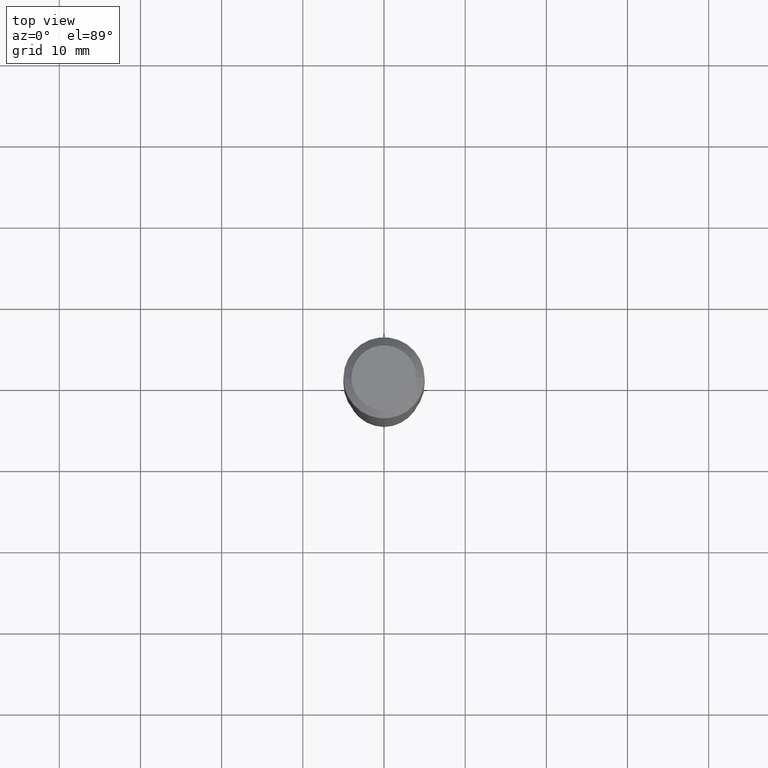
[diagram: clean part render]
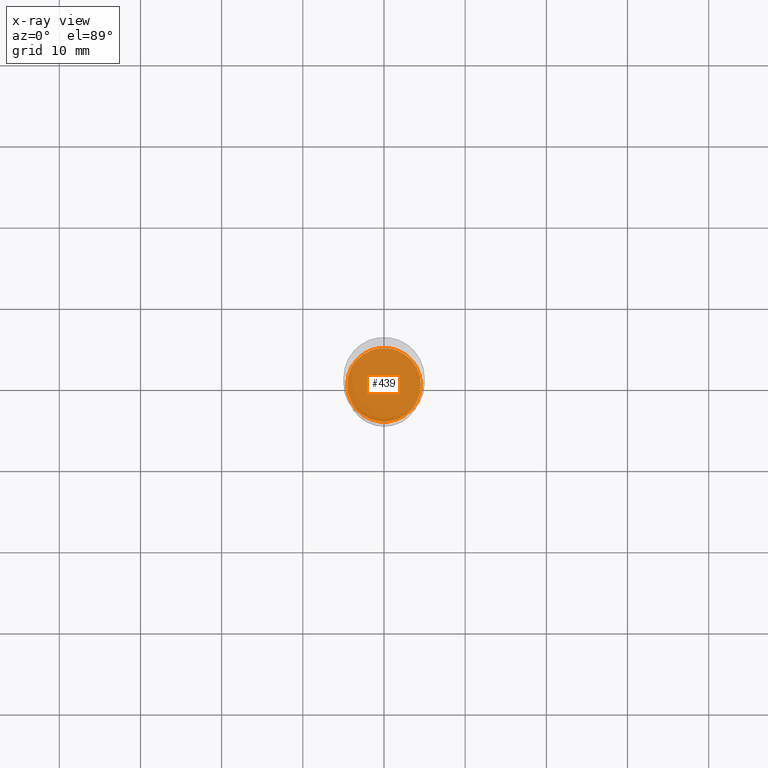
[diagram: x-ray — body ghosted, one internal face saturated and labeled with its STEP entity id]
A machine part, top view, then the same camera in x-ray: the body is ghosted and one INTERNAL B-rep face — a face not visible from any outside direction — is saturated and labeled: STEP entity #439.
In plain terms, the highlighted planar face has unit normal (-0, 0, 1).
Its self-contained STEP definition (entity closure, byte-faithful):
#15 = VERTEX_POINT ( 'NONE', #245 ) ;
#19 = CARTESIAN_POINT ( 'NONE',  ( 7.068010578327116673E-29, -3.947793955047603297E-15, -2.011799999999999589 ) ) ;
#23 = EDGE_CURVE ( 'NONE', #15, #421, #134, .T. ) ;
#111 = ORIENTED_EDGE ( 'NONE', *, *, #23, .F. ) ;
#121 = PLANE ( 'NONE',  #141 ) ;
#125 = DIRECTION ( 'NONE',  ( -2.438088387897960049E-29, 3.491481338843145188E-15, 1.000000000000000000 ) ) ;
#127 = DIRECTION ( 'NONE',  ( -2.445468806185136597E-29, 3.491481338843145583E-15, 1.000000000000000000 ) ) ;
#134 = CIRCLE ( 'NONE', #283, 0.1786500000000000310 ) ;
#141 = AXIS2_PLACEMENT_3D ( 'NONE', #19, #125, #385 ) ;
#169 = DIRECTION ( 'NONE',  ( -2.445468806185136597E-29, 3.491481338843145583E-15, 1.000000000000000000 ) ) ;
#238 = EDGE_CURVE ( 'NONE', #421, #15, #465, .T. ) ;
#245 = CARTESIAN_POINT ( 'NONE',  ( 0.1786500000000000310, -8.271668439853290854E-15, -2.011799999999999589 ) ) ;
#256 = AXIS2_PLACEMENT_3D ( 'NONE', #321, #169, #398 ) ;
#283 = AXIS2_PLACEMENT_3D ( 'NONE', #389, #127, #437 ) ;
#321 = CARTESIAN_POINT ( 'NONE',  ( 4.919794144283256694E-29, -7.024162157484638649E-15, -2.011799999999999589 ) ) ;
#362 = FACE_OUTER_BOUND ( 'NONE', #460, .T. ) ;
#385 = DIRECTION ( 'NONE',  ( 1.000000000000000000, -6.982962677686265922E-15, 4.876176775795935793E-29 ) ) ;
#389 = CARTESIAN_POINT ( 'NONE',  ( 4.919794144283256694E-29, -7.024162157484638649E-15, -2.011799999999999589 ) ) ;
#394 = ORIENTED_EDGE ( 'NONE', *, *, #238, .F. ) ;
#398 = DIRECTION ( 'NONE',  ( 1.000000000000000000, -6.982962677686263555E-15, 0.000000000000000000 ) ) ;
#421 = VERTEX_POINT ( 'NONE', #440 ) ;
#437 = DIRECTION ( 'NONE',  ( 1.000000000000000000, -6.982962677686263555E-15, 0.000000000000000000 ) ) ;
#439 = ADVANCED_FACE ( 'NONE', ( #362 ), #121, .F. ) ;
#440 = CARTESIAN_POINT ( 'NONE',  ( -0.1786500000000000310, -5.752128332875109429E-15, -2.011799999999999589 ) ) ;
#460 = EDGE_LOOP ( 'NONE', ( #111, #394 ) ) ;
#465 = CIRCLE ( 'NONE', #256, 0.1786500000000000310 ) ;